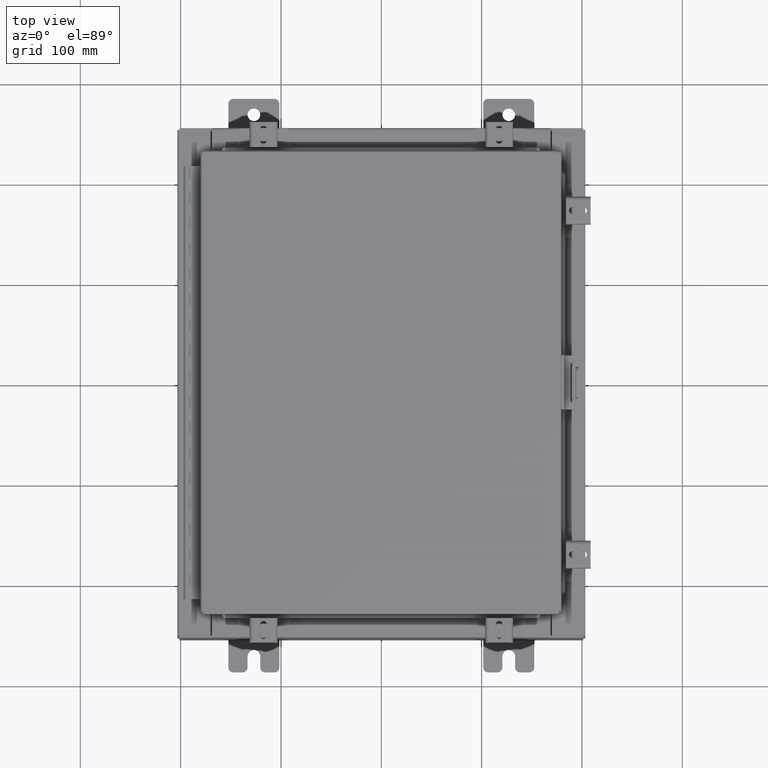
[diagram: clean part render]
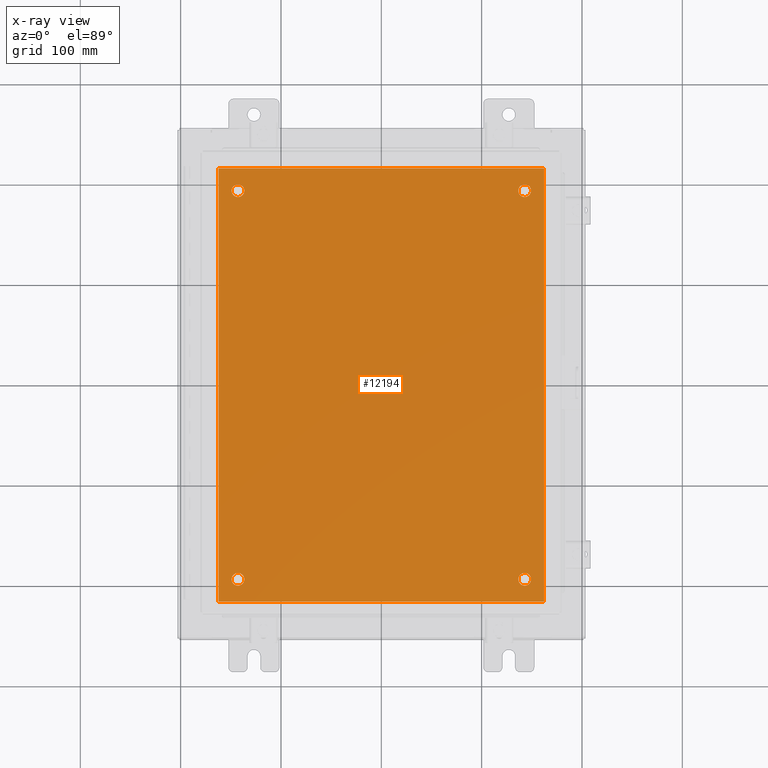
[diagram: x-ray — body ghosted, one internal face saturated and labeled with its STEP entity id]
A machine part, top view, then the same camera in x-ray: the body is ghosted and one INTERNAL B-rep face — a face not visible from any outside direction — is saturated and labeled: STEP entity #12194.
In plain terms, the highlighted planar face has unit normal (0, 0, -1).
Its self-contained STEP definition (entity closure, byte-faithful):
#110 = EDGE_LOOP ( 'NONE', ( #21673, #13685 ) ) ;
#824 = CIRCLE ( 'NONE', #28780, 0.2499999999999998100 ) ;
#860 = VERTEX_POINT ( 'NONE', #26421 ) ;
#969 = VERTEX_POINT ( 'NONE', #3832 ) ;
#1429 = AXIS2_PLACEMENT_3D ( 'NONE', #11301, #28973, #26662 ) ;
#1625 = FACE_BOUND ( 'NONE', #10081, .T. ) ;
#1636 = EDGE_CURVE ( 'NONE', #12492, #860, #4410, .T. ) ;
#1867 = EDGE_CURVE ( 'NONE', #24178, #27653, #3327, .T. ) ;
#2205 = AXIS2_PLACEMENT_3D ( 'NONE', #8704, #24566, #11005 ) ;
#2336 = CARTESIAN_POINT ( 'NONE',  ( -6.382999999999998200, 8.500000000000000000, -0.1039999999999998100 ) ) ;
#2560 = DIRECTION ( 'NONE',  ( -0.0000000000000000000, -0.0000000000000000000, 1.000000000000000000 ) ) ;
#3130 = CARTESIAN_POINT ( 'NONE',  ( 5.874999999999999100, 7.625000000000002700, -0.1039999999999999800 ) ) ;
#3327 = LINE ( 'NONE', #12302, #20783 ) ;
#3832 = CARTESIAN_POINT ( 'NONE',  ( 6.383000000000000900, 8.500000000000000000, -0.1039999999999999800 ) ) ;
#3984 = ORIENTED_EDGE ( 'NONE', *, *, #13780, .T. ) ;
#3988 = DIRECTION ( 'NONE',  ( -0.0000000000000000000, -0.0000000000000000000, 1.000000000000000000 ) ) ;
#4229 = ORIENTED_EDGE ( 'NONE', *, *, #1867, .F. ) ;
#4304 = EDGE_CURVE ( 'NONE', #28714, #9153, #17923, .T. ) ;
#4338 = EDGE_CURVE ( 'NONE', #969, #11241, #22551, .T. ) ;
#4410 = CIRCLE ( 'NONE', #10181, 0.2499999999999987000 ) ;
#5185 = CIRCLE ( 'NONE', #2205, 0.2499999999999987000 ) ;
#5242 = VECTOR ( 'NONE', #27316, 39.37007874015748100 ) ;
#5830 = VERTEX_POINT ( 'NONE', #17039 ) ;
#5863 = EDGE_LOOP ( 'NONE', ( #25164, #9895 ) ) ;
#5897 = CIRCLE ( 'NONE', #25484, 0.2499999999999987000 ) ;
#6058 = DIRECTION ( 'NONE',  ( 0.0000000000000000000, -1.000000000000000000, 0.0000000000000000000 ) ) ;
#6160 = CARTESIAN_POINT ( 'NONE',  ( 5.375000000000001800, 7.625000000000002700, -0.1039999999999999800 ) ) ;
#6877 = VERTEX_POINT ( 'NONE', #3130 ) ;
#6996 = FACE_OUTER_BOUND ( 'NONE', #21482, .T. ) ;
#7542 = CARTESIAN_POINT ( 'NONE',  ( 6.383000000000000900, -8.499999999999998200, -0.1039999999999999800 ) ) ;
#7702 = FACE_BOUND ( 'NONE', #110, .T. ) ;
#8150 = EDGE_CURVE ( 'NONE', #11241, #24178, #25617, .T. ) ;
#8244 = VECTOR ( 'NONE', #6058, 39.37007874015748100 ) ;
#8704 = CARTESIAN_POINT ( 'NONE',  ( 5.625000000000004400, -7.625000000000000900, -0.1039999999999999800 ) ) ;
#8734 = ORIENTED_EDGE ( 'NONE', *, *, #8150, .F. ) ;
#9153 = VERTEX_POINT ( 'NONE', #10247 ) ;
#9166 = CARTESIAN_POINT ( 'NONE',  ( 5.625000000000004400, -7.625000000000000900, -0.1039999999999999800 ) ) ;
#9460 = DIRECTION ( 'NONE',  ( -1.000000000000000000, 0.0000000000000000000, 0.0000000000000000000 ) ) ;
#9495 = DIRECTION ( 'NONE',  ( -0.0000000000000000000, -0.0000000000000000000, 1.000000000000000000 ) ) ;
#9895 = ORIENTED_EDGE ( 'NONE', *, *, #23451, .T. ) ;
#9956 = DIRECTION ( 'NONE',  ( -0.0000000000000000000, -0.0000000000000000000, 1.000000000000000000 ) ) ;
#10081 = EDGE_LOOP ( 'NONE', ( #28382, #16687 ) ) ;
#10181 = AXIS2_PLACEMENT_3D ( 'NONE', #9166, #9495, #9460 ) ;
#10247 = CARTESIAN_POINT ( 'NONE',  ( -5.875000000000000000, 7.625000000000001800, -0.1039999999999999800 ) ) ;
#10276 = PLANE ( 'NONE',  #26035 ) ;
#10601 = LINE ( 'NONE', #11446, #5242 ) ;
#10780 = AXIS2_PLACEMENT_3D ( 'NONE', #17638, #3988, #19937 ) ;
#11005 = DIRECTION ( 'NONE',  ( -1.000000000000000000, 0.0000000000000000000, 0.0000000000000000000 ) ) ;
#11241 = VERTEX_POINT ( 'NONE', #2336 ) ;
#11301 = CARTESIAN_POINT ( 'NONE',  ( -5.625000000000000000, 7.625000000000001800, -0.1039999999999999800 ) ) ;
#11364 = DIRECTION ( 'NONE',  ( -0.0000000000000000000, -0.0000000000000000000, 1.000000000000000000 ) ) ;
#11427 = CIRCLE ( 'NONE', #26281, 0.2499999999999998100 ) ;
#11446 = CARTESIAN_POINT ( 'NONE',  ( 6.383000000000002700, -8.499999999999998200, -0.1039999999999998100 ) ) ;
#11732 = CARTESIAN_POINT ( 'NONE',  ( -5.875000000000000000, -7.625000000000001800, -0.1039999999999999800 ) ) ;
#12194 = ADVANCED_FACE ( 'NONE', ( #19087, #7702, #1625, #13045, #6996 ), #10276, .T. ) ;
#12302 = CARTESIAN_POINT ( 'NONE',  ( -6.499999999999998200, -8.499999999999998200, -0.1039999999999999800 ) ) ;
#12481 = EDGE_CURVE ( 'NONE', #6877, #27305, #5897, .T. ) ;
#12492 = VERTEX_POINT ( 'NONE', #15913 ) ;
#12570 = DIRECTION ( 'NONE',  ( -1.000000000000000000, 0.0000000000000000000, -0.0000000000000000000 ) ) ;
#12572 = DIRECTION ( 'NONE',  ( -0.0000000000000000000, -0.0000000000000000000, 1.000000000000000000 ) ) ;
#13045 = FACE_BOUND ( 'NONE', #5863, .T. ) ;
#13685 = ORIENTED_EDGE ( 'NONE', *, *, #1636, .T. ) ;
#13780 = EDGE_CURVE ( 'NONE', #24961, #5830, #824, .T. ) ;
#15913 = CARTESIAN_POINT ( 'NONE',  ( 5.375000000000006200, -7.625000000000000900, -0.1039999999999999800 ) ) ;
#16050 = EDGE_CURVE ( 'NONE', #27305, #6877, #24015, .T. ) ;
#16195 = CARTESIAN_POINT ( 'NONE',  ( -5.625000000000000000, -7.625000000000001800, -0.1039999999999999800 ) ) ;
#16494 = VECTOR ( 'NONE', #18041, 39.37007874015748100 ) ;
#16687 = ORIENTED_EDGE ( 'NONE', *, *, #16050, .T. ) ;
#17039 = CARTESIAN_POINT ( 'NONE',  ( -5.375000000000000900, -7.625000000000001800, -0.1039999999999999800 ) ) ;
#17288 = ORIENTED_EDGE ( 'NONE', *, *, #24294, .F. ) ;
#17615 = DIRECTION ( 'NONE',  ( 1.000000000000000000, 0.0000000000000000000, 0.0000000000000000000 ) ) ;
#17638 = CARTESIAN_POINT ( 'NONE',  ( -5.625000000000000000, 7.625000000000001800, -0.1039999999999999800 ) ) ;
#17923 = CIRCLE ( 'NONE', #1429, 0.2499999999999998100 ) ;
#18041 = DIRECTION ( 'NONE',  ( -1.000000000000000000, -0.0000000000000000000, -0.0000000000000000000 ) ) ;
#18493 = DIRECTION ( 'NONE',  ( -1.000000000000000000, 0.0000000000000000000, 0.0000000000000000000 ) ) ;
#19087 = FACE_BOUND ( 'NONE', #19619, .T. ) ;
#19113 = AXIS2_PLACEMENT_3D ( 'NONE', #23552, #9956, #25832 ) ;
#19305 = CARTESIAN_POINT ( 'NONE',  ( 0.0000000000000000000, 0.0000000000000000000, -0.1039999999999999800 ) ) ;
#19619 = EDGE_LOOP ( 'NONE', ( #21774, #3984 ) ) ;
#19675 = CARTESIAN_POINT ( 'NONE',  ( -6.382999999999998200, 8.500000000000000000, -0.1039999999999998100 ) ) ;
#19937 = DIRECTION ( 'NONE',  ( -1.000000000000000000, 0.0000000000000000000, 0.0000000000000000000 ) ) ;
#20783 = VECTOR ( 'NONE', #17615, 39.37007874015748100 ) ;
#21482 = EDGE_LOOP ( 'NONE', ( #4229, #8734, #26064, #17288 ) ) ;
#21673 = ORIENTED_EDGE ( 'NONE', *, *, #25273, .T. ) ;
#21774 = ORIENTED_EDGE ( 'NONE', *, *, #29133, .T. ) ;
#22551 = LINE ( 'NONE', #26864, #16494 ) ;
#23093 = CARTESIAN_POINT ( 'NONE',  ( -5.375000000000000900, 7.625000000000001800, -0.1039999999999999800 ) ) ;
#23451 = EDGE_CURVE ( 'NONE', #9153, #28714, #25905, .T. ) ;
#23552 = CARTESIAN_POINT ( 'NONE',  ( 5.625000000000000000, 7.625000000000002700, -0.1039999999999999800 ) ) ;
#24015 = CIRCLE ( 'NONE', #19113, 0.2499999999999987000 ) ;
#24178 = VERTEX_POINT ( 'NONE', #24733 ) ;
#24294 = EDGE_CURVE ( 'NONE', #27653, #969, #10601, .T. ) ;
#24566 = DIRECTION ( 'NONE',  ( -0.0000000000000000000, -0.0000000000000000000, 1.000000000000000000 ) ) ;
#24733 = CARTESIAN_POINT ( 'NONE',  ( -6.382999999999998200, -8.499999999999998200, -0.1039999999999998100 ) ) ;
#24918 = CARTESIAN_POINT ( 'NONE',  ( 5.625000000000000000, 7.625000000000002700, -0.1039999999999999800 ) ) ;
#24961 = VERTEX_POINT ( 'NONE', #11732 ) ;
#25164 = ORIENTED_EDGE ( 'NONE', *, *, #4304, .T. ) ;
#25273 = EDGE_CURVE ( 'NONE', #860, #12492, #5185, .T. ) ;
#25484 = AXIS2_PLACEMENT_3D ( 'NONE', #24918, #11364, #27221 ) ;
#25617 = LINE ( 'NONE', #19675, #8244 ) ;
#25832 = DIRECTION ( 'NONE',  ( -1.000000000000000000, 0.0000000000000000000, 0.0000000000000000000 ) ) ;
#25905 = CIRCLE ( 'NONE', #10780, 0.2499999999999998100 ) ;
#26035 = AXIS2_PLACEMENT_3D ( 'NONE', #19305, #26139, #12570 ) ;
#26064 = ORIENTED_EDGE ( 'NONE', *, *, #4338, .F. ) ;
#26139 = DIRECTION ( 'NONE',  ( 0.0000000000000000000, 0.0000000000000000000, -1.000000000000000000 ) ) ;
#26142 = CARTESIAN_POINT ( 'NONE',  ( -5.625000000000000000, -7.625000000000001800, -0.1039999999999999800 ) ) ;
#26281 = AXIS2_PLACEMENT_3D ( 'NONE', #16195, #2560, #18493 ) ;
#26421 = CARTESIAN_POINT ( 'NONE',  ( 5.875000000000003600, -7.625000000000000900, -0.1039999999999999800 ) ) ;
#26662 = DIRECTION ( 'NONE',  ( -1.000000000000000000, 0.0000000000000000000, 0.0000000000000000000 ) ) ;
#26864 = CARTESIAN_POINT ( 'NONE',  ( -6.499999999999998200, 8.500000000000000000, -0.1039999999999999800 ) ) ;
#27221 = DIRECTION ( 'NONE',  ( -1.000000000000000000, 0.0000000000000000000, 0.0000000000000000000 ) ) ;
#27305 = VERTEX_POINT ( 'NONE', #6160 ) ;
#27316 = DIRECTION ( 'NONE',  ( 0.0000000000000000000, 1.000000000000000000, 0.0000000000000000000 ) ) ;
#27653 = VERTEX_POINT ( 'NONE', #7542 ) ;
#28382 = ORIENTED_EDGE ( 'NONE', *, *, #12481, .T. ) ;
#28449 = DIRECTION ( 'NONE',  ( -1.000000000000000000, 0.0000000000000000000, 0.0000000000000000000 ) ) ;
#28714 = VERTEX_POINT ( 'NONE', #23093 ) ;
#28780 = AXIS2_PLACEMENT_3D ( 'NONE', #26142, #12572, #28449 ) ;
#28973 = DIRECTION ( 'NONE',  ( -0.0000000000000000000, -0.0000000000000000000, 1.000000000000000000 ) ) ;
#29133 = EDGE_CURVE ( 'NONE', #5830, #24961, #11427, .T. ) ;